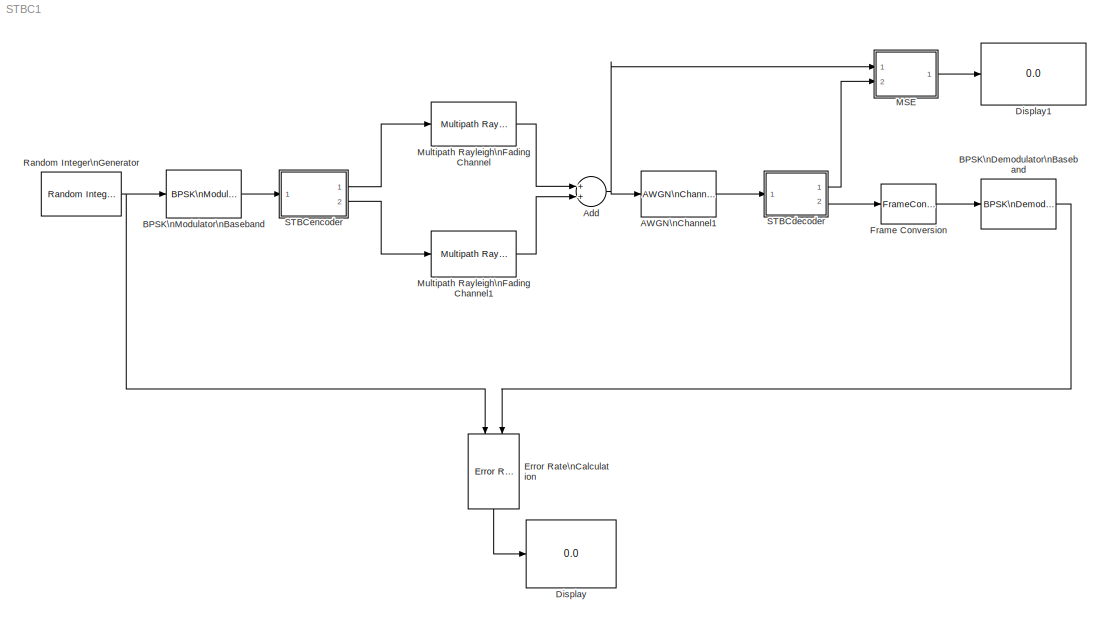
MODEL STBC1
KIND model
BLOCK [Reference] AWGN\nChannel1  REF=commchan3/AWGN\nChannel
  EbNodB = 12
  EsNodB = 10
  FunctionWithSeparateData = off
  Ports = [1, 1]
  Ps = 1
  RTWMemSecDataConstants = Inherit from model
  RTWMemSecDataInternal = Inherit from model
  RTWMemSecDataParameters = Inherit from model
  RTWMemSecFuncExecute = Inherit from model
  RTWMemSecFuncInitTerm = Inherit from model
  SNRdB = 10
  ShowPortLabels = on
  SourceBlock = commchan3/AWGN\nChannel
  SourceType = AWGN Channel
  SystemSampleTime = -1
  Tsym = 0.0000005
  bitsPerSym = 1
  noiseMode = Signal to noise ratio  (Eb/No)
  seed = 18293
  variance = 1
BLOCK [Sum] Add
  InputSameDT = off
  OutDataTypeMode = Inherit via internal rule
  OutScaling = 2^-10
  Ports = [2, 1]
  SaturateOnIntegerOverflow = off
BLOCK [Reference] BPSK\nDemodulator\nBaseband  REF=commdigbbndpm3/BPSK\nDemodulator\nBaseband
  DecType = Hard decision
  DialogController = commDDGCreate
  DialogControllerArgs = DataTag0
  Ph = 0
  Ports = [1, 1]
  SourceBlock = commdigbbndpm3/BPSK\nDemodulator\nBaseband
  SourceType = BPSK Demodulator Baseband
  VarSource = Dialog
  Variance = 1
  outDtype = double
BLOCK [Reference] BPSK\nModulator\nBaseband  REF=commdigbbndpm3/BPSK\nModulator\nBaseband
  FunctionWithSeparateData = off
  Ph = 0
  Ports = [1, 1]
  RTWMemSecDataConstants = Inherit from model
  RTWMemSecDataInternal = Inherit from model
  RTWMemSecDataParameters = Inherit from model
  RTWMemSecFuncExecute = Inherit from model
  RTWMemSecFuncInitTerm = Inherit from model
  ShowPortLabels = on
  SourceBlock = commdigbbndpm3/BPSK\nModulator\nBaseband
  SourceType = BPSK Modulator Baseband
  SystemSampleTime = -1
  outDtype = double
  outFracLen = 15
  outFracLenMode = Best precision
  outUDDataType = sfix(16)
  outWordLen = 16
BLOCK [Display] Display
  Decimation = 1
  Lockdown = off
  Ports = [1]
BLOCK [Display] Display1
  Decimation = 1
  Lockdown = off
  Ports = [1]
BLOCK [Reference] Error Rate\nCalculation  REF=commsink2/Error Rate\nCalculation
  N = 0
  PMode = Port
  Ports = [2, 1]
  RsMode2 = off
  SourceBlock = commsink2/Error Rate\nCalculation
  SourceType = Error Rate Calculation
  WsName = ErrorVec
  cp_mode = Entire frame
  maxBits = 5e5
  numErr = 1000000
  st_delay = 0
  stop = on
  subframe = []
BLOCK [FrameConversion] Frame Conversion
  OutFrame = Frame based
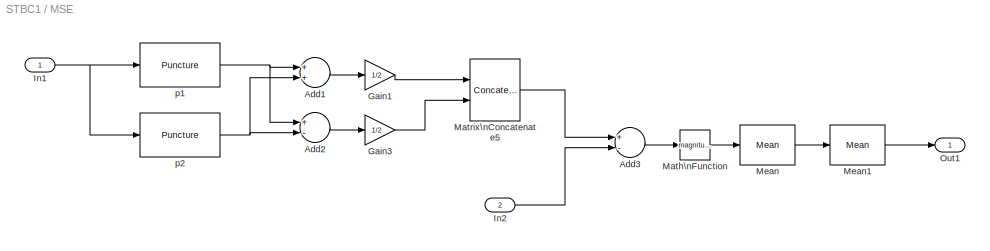
BLOCK [SubSystem] MSE
  FunctionWithSeparateData = off
  MaskHideContents = off
  MinAlgLoopOccurrences = off
  Ports = [2, 1]
  RTWSystemCode = Auto
BLOCK [Sum] MSE/Add1
  InputSameDT = off
  OutDataTypeMode = Inherit via internal rule
  OutScaling = 2^-10
  Ports = [2, 1]
  SaturateOnIntegerOverflow = off
BLOCK [Sum] MSE/Add2
  InputSameDT = off
  Inputs = +-
  OutDataTypeMode = Inherit via internal rule
  OutScaling = 2^-10
  Ports = [2, 1]
  SaturateOnIntegerOverflow = off
BLOCK [Sum] MSE/Add3
  InputSameDT = off
  Inputs = +-
  OutDataTypeMode = Inherit via internal rule
  OutScaling = 2^-10
  Ports = [2, 1]
  SaturateOnIntegerOverflow = off
BLOCK [Gain] MSE/Gain1
  Gain = 1/2
  OutDataTypeMode = Inherit via internal rule
  ParameterDataTypeMode = Inherit via internal rule
  SaturateOnIntegerOverflow = off
BLOCK [Gain] MSE/Gain3
  Gain = 1/2
  OutDataTypeMode = Inherit via internal rule
  ParameterDataTypeMode = Inherit via internal rule
  SaturateOnIntegerOverflow = off
BLOCK [Inport] MSE/In1
  IconDisplay = Port number
BLOCK [Inport] MSE/In2
  IconDisplay = Port number
  Port = 2
BLOCK [Math] MSE/Math\nFunction
  Operator = magnitude^2
  Ports = [1, 1]
BLOCK [Concatenate] MSE/Matrix\nConcatenate5
  Mode = Vertical matrix concatenation
  Ports = [2, 1]
BLOCK [Reference] MSE/Mean  REF=dspstat3/Mean
  DialogController = dspDDGCreate
  DialogControllerArgs = DataTag1
  LockScale = off
  Ports = [1, 1]
  SourceBlock = dspstat3/Mean
  SourceType = Mean
  accumFracLength = 30
  accumMode = Same as input
  accumWordLength = 32
  additionalParams = off
  allowOverrides = on
  outputFracLength = 30
  outputMode = Same as accumulator
  outputWordLength = 32
  overflowMode = off
  reset_popup = None
  roundingMode = Floor
  run = on
BLOCK [Reference] MSE/Mean1  REF=dspstat3/Mean
  DialogController = dspDDGCreate
  DialogControllerArgs = DataTag2
  LockScale = off
  Ports = [1, 1]
  SourceBlock = dspstat3/Mean
  SourceType = Mean
  accumFracLength = 30
  accumMode = Same as input
  accumWordLength = 32
  additionalParams = off
  allowOverrides = on
  outputFracLength = 30
  outputMode = Same as accumulator
  outputWordLength = 32
  overflowMode = off
  reset_popup = None
  roundingMode = Floor
  run = off
BLOCK [Outport] MSE/Out1
  BusOutputAsStruct = off
  IconDisplay = Port number
BLOCK [Reference] MSE/p1  REF=commsequence2/Puncture
  Ports = [1, 1]
  SourceBlock = commsequence2/Puncture
  SourceType = Puncture
  punctureVector = [1 0 0 0].'
BLOCK [Reference] MSE/p2  REF=commsequence2/Puncture
  Ports = [1, 1]
  SourceBlock = commsequence2/Puncture
  SourceType = Puncture
  punctureVector = [0 1 0 0].'
BLOCK [Reference] Multipath Rayleigh\nFading Channel  REF=commchan3/Multipath Rayleigh\nFading Channel
  FunctionWithSeparateData = off
  Ports = [1, 1]
  RTWMemSecDataConstants = Inherit from model
  RTWMemSecDataInternal = Inherit from model
  RTWMemSecDataParameters = Inherit from model
  RTWMemSecFuncExecute = Inherit from model
  RTWMemSecFuncInitTerm = Inherit from model
  ShowPortLabels = on
  SourceBlock = commchan3/Multipath Rayleigh\nFading Channel
  SourceType = Multipath Rayleigh Fading Channel
  SystemSampleTime = -1
  avgPathGaindB = [0]
  enableProbe = 0
  maxDopplerShift = 40
  normalizePathGains = on
  openVisAtStart = off
  outDelay = off
  outPathGains = off
  pathDelays = [0]
  seed = 73117
BLOCK [Reference] Multipath Rayleigh\nFading Channel1  REF=commchan3/Multipath Rayleigh\nFading Channel
  FunctionWithSeparateData = off
  Ports = [1, 1]
  RTWMemSecDataConstants = Inherit from model
  RTWMemSecDataInternal = Inherit from model
  RTWMemSecDataParameters = Inherit from model
  RTWMemSecFuncExecute = Inherit from model
  RTWMemSecFuncInitTerm = Inherit from model
  ShowPortLabels = on
  SourceBlock = commchan3/Multipath Rayleigh\nFading Channel
  SourceType = Multipath Rayleigh Fading Channel
  SystemSampleTime = -1
  avgPathGaindB = [0]
  enableProbe = 0
  maxDopplerShift = 40
  normalizePathGains = on
  openVisAtStart = off
  outDelay = off
  outPathGains = off
  pathDelays = [0]
  seed = 17893
BLOCK [Reference] Random Integer\nGenerator  REF=commrandsrc2/Random Integer\nGenerator
  FunctionWithSeparateData = off
  Ports = [0, 1]
  RTWMemSecDataConstants = Inherit from model
  RTWMemSecDataInternal = Inherit from model
  RTWMemSecDataParameters = Inherit from model
  RTWMemSecFuncExecute = Inherit from model
  RTWMemSecFuncInitTerm = Inherit from model
  ShowPortLabels = on
  SourceBlock = commrandsrc2/Random Integer\nGenerator
  SourceType = Random Integer Generator
  SystemSampleTime = -1
  Ts = 1e-6
  frameBased = on
  mul = 2
  orient = off
  outDataType = double
  sampPerFrame = 2
  seed = 871234
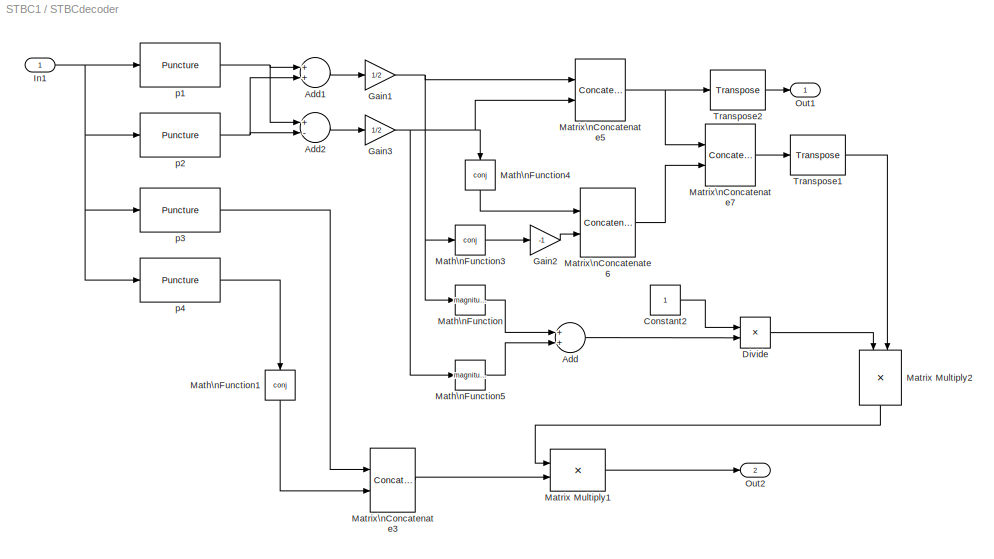
BLOCK [SubSystem] STBCdecoder
  FunctionWithSeparateData = off
  MaskHideContents = off
  MinAlgLoopOccurrences = off
  Ports = [1, 2]
  RTWSystemCode = Auto
BLOCK [Sum] STBCdecoder/Add
  InputSameDT = off
  OutDataTypeMode = Inherit via internal rule
  OutScaling = 2^-10
  Ports = [2, 1]
  SaturateOnIntegerOverflow = off
BLOCK [Sum] STBCdecoder/Add1
  InputSameDT = off
  OutDataTypeMode = Inherit via internal rule
  OutScaling = 2^-10
  Ports = [2, 1]
  SaturateOnIntegerOverflow = off
BLOCK [Sum] STBCdecoder/Add2
  InputSameDT = off
  Inputs = +-
  OutDataTypeMode = Inherit via internal rule
  OutScaling = 2^-10
  Ports = [2, 1]
  SaturateOnIntegerOverflow = off
BLOCK [Constant] STBCdecoder/Constant2
  ConRadixGroup = Use specified scaling
  FramePeriod = inf
  OutDataType = sfix(16)
  OutDataTypeMode = Inherit from 'Constant value'
  OutScaling = 2^0
  SampleTime = inf
  SamplingMode = Sample based
  Value = 1
  VectorParams1D = on
BLOCK [Product] STBCdecoder/Divide
  InputSameDT = off
  Inputs = */
  OutDataTypeMode = Inherit via internal rule
  OutScaling = 2^-10
  Ports = [2, 1]
  RndMeth = Floor
  SaturateOnIntegerOverflow = off
BLOCK [Gain] STBCdecoder/Gain1
  Gain = 1/2
  OutDataTypeMode = Inherit via internal rule
  ParameterDataTypeMode = Inherit via internal rule
  SaturateOnIntegerOverflow = off
BLOCK [Gain] STBCdecoder/Gain2
  Gain = -1
  OutDataTypeMode = Inherit via internal rule
  ParameterDataTypeMode = Inherit via internal rule
  SaturateOnIntegerOverflow = off
BLOCK [Gain] STBCdecoder/Gain3
  Gain = 1/2
  OutDataTypeMode = Inherit via internal rule
  ParameterDataTypeMode = Inherit via internal rule
  SaturateOnIntegerOverflow = off
BLOCK [Inport] STBCdecoder/In1
  IconDisplay = Port number
BLOCK [Math] STBCdecoder/Math\nFunction
  Operator = magnitude^2
  Ports = [1, 1]
BLOCK [Math] STBCdecoder/Math\nFunction1
  Operator = conj
  Ports = [1, 1]
BLOCK [Math] STBCdecoder/Math\nFunction3
  Operator = conj
  Ports = [1, 1]
BLOCK [Math] STBCdecoder/Math\nFunction4
  Operator = conj
  Ports = [1, 1]
BLOCK [Math] STBCdecoder/Math\nFunction5
  Operator = magnitude^2
  Ports = [1, 1]
BLOCK [Product] STBCdecoder/Matrix Multiply1
  InputSameDT = off
  Multiplication = Matrix(*)
  OutDataTypeMode = Inherit via internal rule
  Ports = [2, 1]
  RndMeth = Floor
  SaturateOnIntegerOverflow = off
BLOCK [Product] STBCdecoder/Matrix Multiply2
  InputSameDT = off
  OutDataTypeMode = Inherit via internal rule
  Ports = [2, 1]
  RndMeth = Floor
  SaturateOnIntegerOverflow = off
BLOCK [Concatenate] STBCdecoder/Matrix\nConcatenate3
  Mode = Vertical matrix concatenation
  Ports = [2, 1]
BLOCK [Concatenate] STBCdecoder/Matrix\nConcatenate5
  Mode = Horizontal matrix concatenation
  Ports = [2, 1]
BLOCK [Concatenate] STBCdecoder/Matrix\nConcatenate6
  Mode = Horizontal matrix concatenation
  Ports = [2, 1]
BLOCK [Concatenate] STBCdecoder/Matrix\nConcatenate7
  Mode = Vertical matrix concatenation
  Ports = [2, 1]
BLOCK [Outport] STBCdecoder/Out1
  BusOutputAsStruct = off
  IconDisplay = Port number
BLOCK [Outport] STBCdecoder/Out2
  BusOutputAsStruct = off
  IconDisplay = Port number
  Port = 2
BLOCK [Reference] STBCdecoder/Transpose1  REF=dspmtrx3/Transpose
  FunctionWithSeparateData = off
  Hermitian = on
  Ports = [1, 1]
  RTWMemSecDataConstants = Inherit from model
  RTWMemSecDataInternal = Inherit from model
  RTWMemSecDataParameters = Inherit from model
  RTWMemSecFuncExecute = Inherit from model
  RTWMemSecFuncInitTerm = Inherit from model
  ShowPortLabels = on
  SourceBlock = dspmtrx3/Transpose
  SourceType = Transpose
  SystemSampleTime = -1
  overflowFlag = off
BLOCK [Reference] STBCdecoder/Transpose2  REF=dspmtrx3/Transpose
  FunctionWithSeparateData = off
  Hermitian = off
  Ports = [1, 1]
  RTWMemSecDataConstants = Inherit from model
  RTWMemSecDataInternal = Inherit from model
  RTWMemSecDataParameters = Inherit from model
  RTWMemSecFuncExecute = Inherit from model
  RTWMemSecFuncInitTerm = Inherit from model
  ShowPortLabels = on
  SourceBlock = dspmtrx3/Transpose
  SourceType = Transpose
  SystemSampleTime = -1
  overflowFlag = off
BLOCK [Reference] STBCdecoder/p1  REF=commsequence2/Puncture
  Ports = [1, 1]
  SourceBlock = commsequence2/Puncture
  SourceType = Puncture
  punctureVector = [1 0 0 0].'
BLOCK [Reference] STBCdecoder/p2  REF=commsequence2/Puncture
  Ports = [1, 1]
  SourceBlock = commsequence2/Puncture
  SourceType = Puncture
  punctureVector = [0 1 0 0].'
BLOCK [Reference] STBCdecoder/p3  REF=commsequence2/Puncture
  Ports = [1, 1]
  SourceBlock = commsequence2/Puncture
  SourceType = Puncture
  punctureVector = [0 0 1 0].'
BLOCK [Reference] STBCdecoder/p4  REF=commsequence2/Puncture
  Ports = [1, 1]
  SourceBlock = commsequence2/Puncture
  SourceType = Puncture
  punctureVector = [0 0 0 1].'
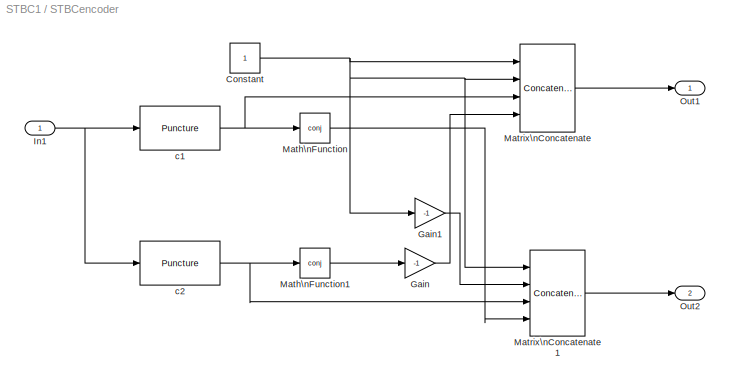
BLOCK [SubSystem] STBCencoder
  FunctionWithSeparateData = off
  MaskHideContents = off
  MinAlgLoopOccurrences = off
  Ports = [1, 2]
  RTWSystemCode = Auto
BLOCK [Constant] STBCencoder/Constant
  ConRadixGroup = Use specified scaling
  FramePeriod = inf
  OutDataType = sfix(16)
  OutDataTypeMode = Inherit from 'Constant value'
  OutScaling = 2^0
  SampleTime = inf
  SamplingMode = Sample based
  Value = 1
  VectorParams1D = on
BLOCK [Gain] STBCencoder/Gain
  Gain = -1
  OutDataTypeMode = Inherit via internal rule
  ParameterDataTypeMode = Inherit via internal rule
  SaturateOnIntegerOverflow = off
BLOCK [Gain] STBCencoder/Gain1
  Gain = -1
  OutDataTypeMode = Inherit via internal rule
  ParameterDataTypeMode = Inherit via internal rule
  SaturateOnIntegerOverflow = off
BLOCK [Inport] STBCencoder/In1
  IconDisplay = Port number
BLOCK [Math] STBCencoder/Math\nFunction
  Operator = conj
  Ports = [1, 1]
BLOCK [Math] STBCencoder/Math\nFunction1
  Operator = conj
  Ports = [1, 1]
BLOCK [Concatenate] STBCencoder/Matrix\nConcatenate
  Mode = Vertical matrix concatenation
  NumInputs = 4
  Ports = [4, 1]
BLOCK [Concatenate] STBCencoder/Matrix\nConcatenate1
  Mode = Vertical matrix concatenation
  NumInputs = 4
  Ports = [4, 1]
BLOCK [Outport] STBCencoder/Out1
  BusOutputAsStruct = off
  IconDisplay = Port number
BLOCK [Outport] STBCencoder/Out2
  BusOutputAsStruct = off
  IconDisplay = Port number
  Port = 2
BLOCK [Reference] STBCencoder/c1  REF=commsequence2/Puncture
  Ports = [1, 1]
  SourceBlock = commsequence2/Puncture
  SourceType = Puncture
  punctureVector = [1 0].'
BLOCK [Reference] STBCencoder/c2  REF=commsequence2/Puncture
  Ports = [1, 1]
  SourceBlock = commsequence2/Puncture
  SourceType = Puncture
  punctureVector = [0 1].'
LINE AWGN\nChannel1:1 -> STBCdecoder:1
NET Add:1 -> AWGN\nChannel1:1, MSE:1
LINE BPSK\nDemodulator\nBaseband:1 -> Error Rate\nCalculation:2
LINE BPSK\nModulator\nBaseband:1 -> STBCencoder:1
LINE Error Rate\nCalculation:1 -> Display:1
LINE Frame Conversion:1 -> BPSK\nDemodulator\nBaseband:1
LINE MSE/Add1:1 -> MSE/Gain1:1
LINE MSE/Add2:1 -> MSE/Gain3:1
LINE MSE/Add3:1 -> MSE/Math\nFunction:1
LINE MSE/Gain1:1 -> MSE/Matrix\nConcatenate5:1
LINE MSE/Gain3:1 -> MSE/Matrix\nConcatenate5:2
NET MSE/In1:1 -> MSE/p1:1, MSE/p2:1
LINE MSE/In2:1 -> MSE/Add3:2
LINE MSE/Math\nFunction:1 -> MSE/Mean:1
LINE MSE/Matrix\nConcatenate5:1 -> MSE/Add3:1
LINE MSE/Mean1:1 -> MSE/Out1:1
LINE MSE/Mean:1 -> MSE/Mean1:1
NET MSE/p1:1 -> MSE/Add1:1, MSE/Add2:1
NET MSE/p2:1 -> MSE/Add1:2, MSE/Add2:2
LINE MSE:1 -> Display1:1
LINE Multipath Rayleigh\nFading Channel1:1 -> Add:2
LINE Multipath Rayleigh\nFading Channel:1 -> Add:1
NET Random Integer\nGenerator:1 -> BPSK\nModulator\nBaseband:1, Error Rate\nCalculation:1
LINE STBCdecoder/Add1:1 -> STBCdecoder/Gain1:1
LINE STBCdecoder/Add2:1 -> STBCdecoder/Gain3:1
LINE STBCdecoder/Add:1 -> STBCdecoder/Divide:2
LINE STBCdecoder/Constant2:1 -> STBCdecoder/Divide:1
LINE STBCdecoder/Divide:1 -> STBCdecoder/Matrix Multiply2:1
NET STBCdecoder/Gain1:1 -> STBCdecoder/Math\nFunction3:1, STBCdecoder/Math\nFunction:1, STBCdecoder/Matrix\nConcatenate5:1
LINE STBCdecoder/Gain2:1 -> STBCdecoder/Matrix\nConcatenate6:2
NET STBCdecoder/Gain3:1 -> STBCdecoder/Math\nFunction4:1, STBCdecoder/Math\nFunction5:1, STBCdecoder/Matrix\nConcatenate5:2
NET STBCdecoder/In1:1 -> STBCdecoder/p1:1, STBCdecoder/p2:1, STBCdecoder/p3:1, STBCdecoder/p4:1
LINE STBCdecoder/Math\nFunction1:1 -> STBCdecoder/Matrix\nConcatenate3:2
LINE STBCdecoder/Math\nFunction3:1 -> STBCdecoder/Gain2:1
LINE STBCdecoder/Math\nFunction4:1 -> STBCdecoder/Matrix\nConcatenate6:1
LINE STBCdecoder/Math\nFunction5:1 -> STBCdecoder/Add:2
LINE STBCdecoder/Math\nFunction:1 -> STBCdecoder/Add:1
LINE STBCdecoder/Matrix Multiply1:1 -> STBCdecoder/Out2:1
LINE STBCdecoder/Matrix Multiply2:1 -> STBCdecoder/Matrix Multiply1:1
LINE STBCdecoder/Matrix\nConcatenate3:1 -> STBCdecoder/Matrix Multiply1:2
NET STBCdecoder/Matrix\nConcatenate5:1 -> STBCdecoder/Matrix\nConcatenate7:1, STBCdecoder/Transpose2:1
LINE STBCdecoder/Matrix\nConcatenate6:1 -> STBCdecoder/Matrix\nConcatenate7:2
LINE STBCdecoder/Matrix\nConcatenate7:1 -> STBCdecoder/Transpose1:1
LINE STBCdecoder/Transpose1:1 -> STBCdecoder/Matrix Multiply2:2
LINE STBCdecoder/Transpose2:1 -> STBCdecoder/Out1:1
NET STBCdecoder/p1:1 -> STBCdecoder/Add1:1, STBCdecoder/Add2:1
NET STBCdecoder/p2:1 -> STBCdecoder/Add1:2, STBCdecoder/Add2:2
LINE STBCdecoder/p3:1 -> STBCdecoder/Matrix\nConcatenate3:1
LINE STBCdecoder/p4:1 -> STBCdecoder/Math\nFunction1:1
LINE STBCdecoder:1 -> MSE:2
LINE STBCdecoder:2 -> Frame Conversion:1
NET STBCencoder/Constant:1 -> STBCencoder/Gain1:1, STBCencoder/Matrix\nConcatenate1:1, STBCencoder/Matrix\nConcatenate:1, STBCencoder/Matrix\nConcatenate:2
LINE STBCencoder/Gain1:1 -> STBCencoder/Matrix\nConcatenate1:2
LINE STBCencoder/Gain:1 -> STBCencoder/Matrix\nConcatenate:4
NET STBCencoder/In1:1 -> STBCencoder/c1:1, STBCencoder/c2:1
LINE STBCencoder/Math\nFunction1:1 -> STBCencoder/Gain:1
LINE STBCencoder/Math\nFunction:1 -> STBCencoder/Matrix\nConcatenate1:4
LINE STBCencoder/Matrix\nConcatenate1:1 -> STBCencoder/Out2:1
LINE STBCencoder/Matrix\nConcatenate:1 -> STBCencoder/Out1:1
NET STBCencoder/c1:1 -> STBCencoder/Math\nFunction:1, STBCencoder/Matrix\nConcatenate:3
NET STBCencoder/c2:1 -> STBCencoder/Math\nFunction1:1, STBCencoder/Matrix\nConcatenate1:3
LINE STBCencoder:1 -> Multipath Rayleigh\nFading Channel:1
LINE STBCencoder:2 -> Multipath Rayleigh\nFading Channel1:1
note: NET lines group one-source signal fan-out (src -> all destinations, sorted); 1:1 wires keep LINE
